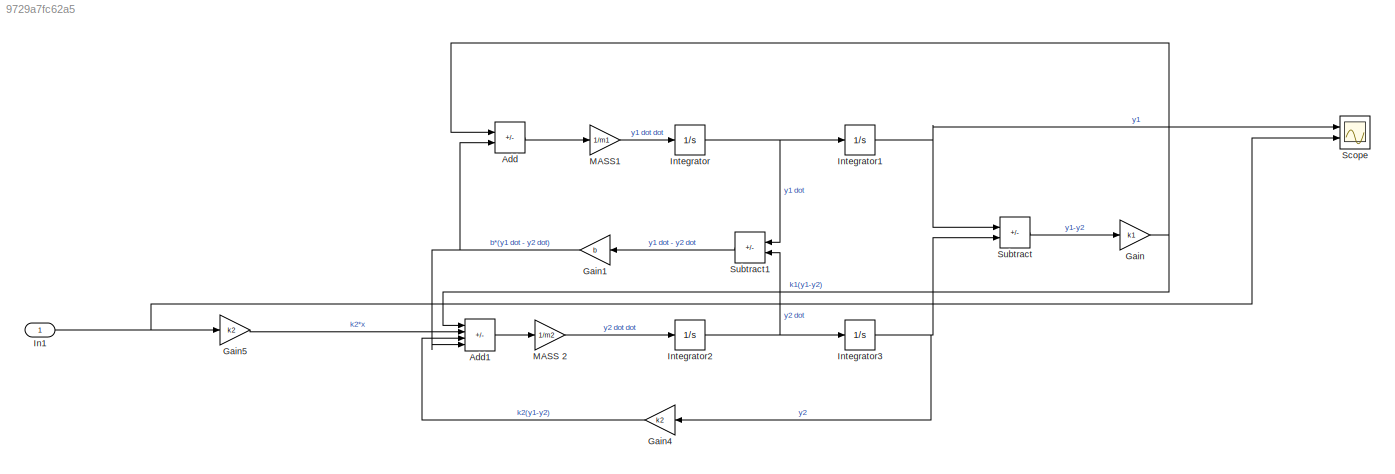
MODEL slx_9729a7fc62a5
KIND model
CONFIG AbsTol = auto
CONFIG EnableMultiTasking = off
CONFIG FixedStep = auto
CONFIG MaxStep = auto
CONFIG MinStep = auto
CONFIG RelTol = 1e-3
CONFIG SampleTimeConstraint = Unconstrained
CONFIG Solver = VariableStepAuto
CONFIG SolverName = VariableStepAuto
CONFIG StartTime = 0.0
CONFIG StopTime = 100
WORKSPACE source: mxarray member
WORKSPACE b = 350
WORKSPACE k1 = 80000
WORKSPACE k2 = 500000
WORKSPACE m1 = 2500
WORKSPACE m2 = 320
BLOCK [Sum] Add
  IconShape = rectangular
  Inputs = --
  Ports = [2, 1]
BLOCK [Sum] Add1
  IconShape = rectangular
  Inputs = ++-+
  Ports = [4, 1]
BLOCK [Gain] Gain
  Gain = k1
BLOCK [Gain] Gain1
  Gain = b
  NameLocation = top
BLOCK [Gain] Gain4
  Gain = k2
  NameLocation = top
BLOCK [Gain] Gain5
  Gain = k2
BLOCK [Inport] In1
BLOCK [Integrator] Integrator
  Ports = [1, 1]
BLOCK [Integrator] Integrator1
  Ports = [1, 1]
BLOCK [Integrator] Integrator2
  Ports = [1, 1]
BLOCK [Integrator] Integrator3
  Ports = [1, 1]
BLOCK [Gain] MASS 2
  Gain = 1/m2
BLOCK [Gain] MASS1
  Gain = 1/m1
BLOCK [Scope] Scope
  Floating = off
  NumInputPorts = 2
  Ports = [2]
  ScopeSpecificationString = Simulink.scopes.TimeScopeBlockCfg('CurrentConfiguration', extmgr.ConfigurationSet(extmgr.Configuration('Core','General UI',true),extmgr.Configuration('Core','Source UI',true),extmgr.Configuration('Sources','WiredSimulink',true),extmgr.Configuration('Visuals','Time Domain',true,'SerializedDisplays',{struct('MinYLimReal','-0.14359','MaxYLimReal','0.14362','YLabelReal','','MinYLimMag','0.00000','MaxY...<+1326ch>
BLOCK [Sum] Subtract
  IconShape = rectangular
  Inputs = +-
  Ports = [2, 1]
BLOCK [Sum] Subtract1
  IconShape = rectangular
  Inputs = +-
  NameLocation = top
  Ports = [2, 1]
LINE Add1:1 -> MASS 2:1
LINE Add:1 -> MASS1:1
NET Gain1:1 -> Add1:4, Add:2
LINE Gain4:1 -> Add1:3
LINE Gain5:1 -> Add1:2
NET Gain:1 -> Add1:1, Add:1
NET In1:1 -> Gain5:1, Scope:2
NET Integrator1:1 -> Scope:1, Subtract:1
NET Integrator2:1 -> Integrator3:1, Subtract1:2
NET Integrator3:1 -> Gain4:1, Subtract:2
NET Integrator:1 -> Integrator1:1, Subtract1:1
LINE MASS 2:1 -> Integrator2:1
LINE MASS1:1 -> Integrator:1
LINE Subtract1:1 -> Gain1:1
LINE Subtract:1 -> Gain:1
note: NET lines group one-source signal fan-out (src -> all destinations, sorted); 1:1 wires keep LINE
